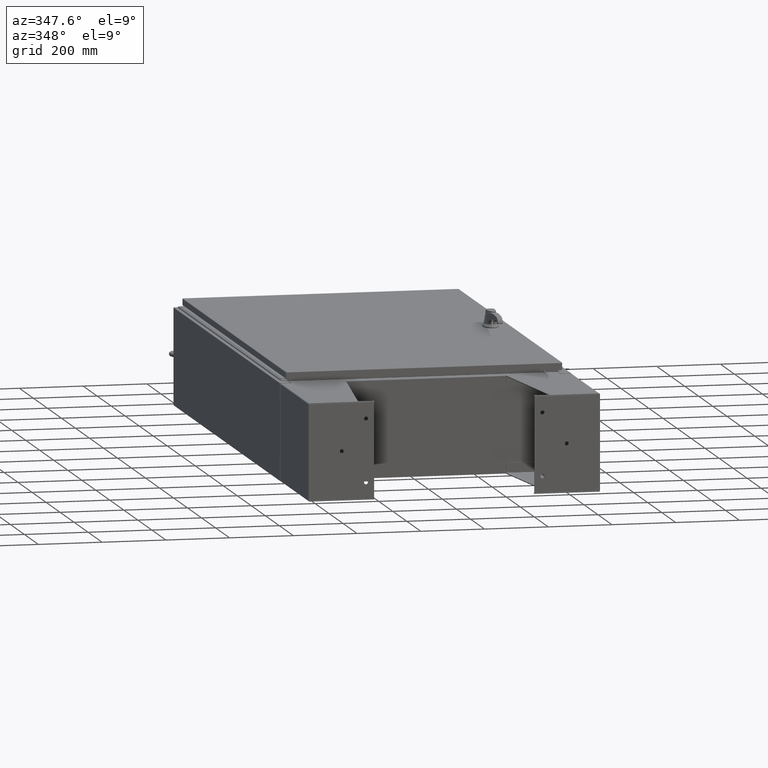
[diagram: clean part render]
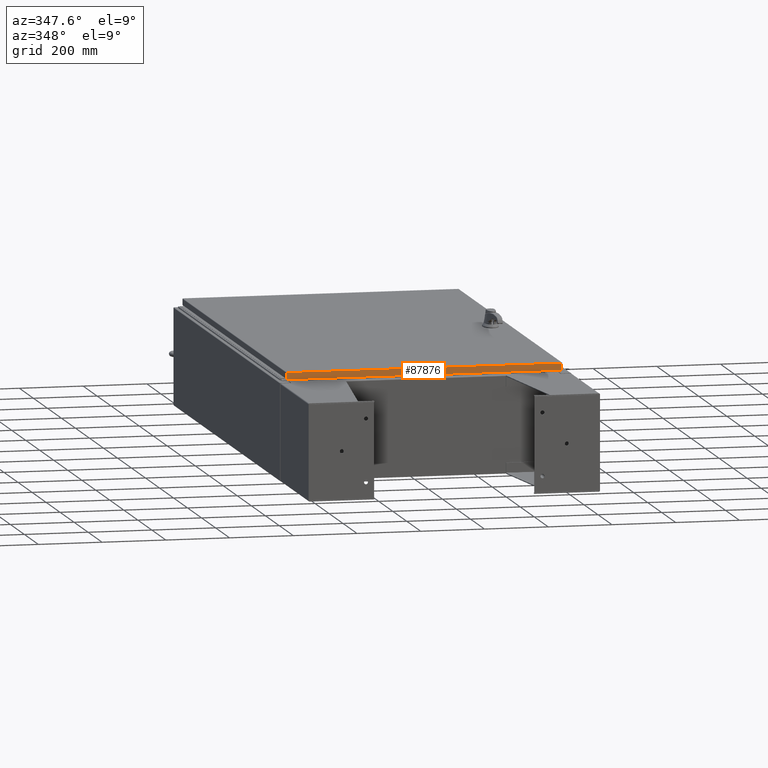
[diagram: same view with one face highlighted and labeled with its STEP entity id]
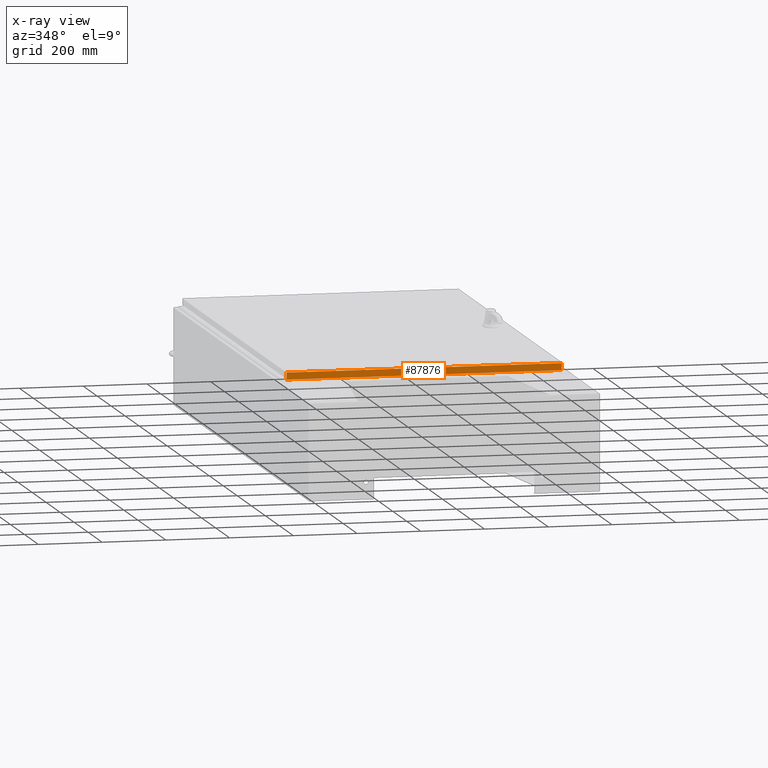
[diagram: x-ray of the same camera — body ghosted, the highlighted face saturated]
A machine part, auxiliary view. The second image highlights one B-rep face of the part: STEP entity #87876.
The next image is the same camera in x-ray: the body ghosted, the highlighted face saturated — about 0% of this face is hidden behind the body in this view.
In plain terms, the highlighted planar face has unit normal (-0, 1, -0).
Its self-contained STEP definition (entity closure, byte-faithful):
#3765 = CARTESIAN_POINT ( 'NONE',  ( -16.98915786437626700, -29.09400000000000100, -0.08769999999999550400 ) ) ;
#21028 = EDGE_CURVE ( 'NONE', #102440, #144870, #144895, .T. ) ;
#30007 = PLANE ( 'NONE',  #117125 ) ;
#30159 = CARTESIAN_POINT ( 'NONE',  ( 17.07800000000000300, -29.09400000000000100, -0.08769999999999550400 ) ) ;
#31790 = LINE ( 'NONE', #73816, #54768 ) ;
#33710 = EDGE_CURVE ( 'NONE', #102440, #87338, #83540, .T. ) ;
#35629 = LINE ( 'NONE', #95351, #92241 ) ;
#41343 = DIRECTION ( 'NONE',  ( -6.481495528880677800E-031, 1.000000000000000000, -5.064839849203732200E-015 ) ) ;
#54768 = VECTOR ( 'NONE', #108103, 39.37007874015748100 ) ;
#56981 = EDGE_CURVE ( 'NONE', #119733, #144870, #35629, .T. ) ;
#57029 = VECTOR ( 'NONE', #97934, 39.37007874015748100 ) ;
#60393 = ORIENTED_EDGE ( 'NONE', *, *, #145288, .F. ) ;
#65203 = DIRECTION ( 'NONE',  ( 0.0000000000000000000, -5.064839849203732200E-015, -1.000000000000000000 ) ) ;
#66505 = CARTESIAN_POINT ( 'NONE',  ( -16.98915786437626700, -29.09400000000000500, -0.9376999999999954300 ) ) ;
#69242 = ORIENTED_EDGE ( 'NONE', *, *, #56981, .F. ) ;
#73816 = CARTESIAN_POINT ( 'NONE',  ( 16.98915786437627100, -29.09400000000000100, -0.07469999999999962800 ) ) ;
#76605 = CARTESIAN_POINT ( 'NONE',  ( 16.98915786437627100, -29.09400000000000500, -0.9376999999999997600 ) ) ;
#83540 = LINE ( 'NONE', #30159, #57029 ) ;
#87338 = VERTEX_POINT ( 'NONE', #112837 ) ;
#87876 = ADVANCED_FACE ( 'NONE', ( #142935 ), #30007, .F. ) ;
#90629 = ORIENTED_EDGE ( 'NONE', *, *, #33710, .F. ) ;
#92241 = VECTOR ( 'NONE', #140344, 39.37007874015748100 ) ;
#95351 = CARTESIAN_POINT ( 'NONE',  ( 17.07800000000000300, -29.09400000000000500, -0.9376999999999997600 ) ) ;
#97779 = CARTESIAN_POINT ( 'NONE',  ( 1.885726309172544400E-029, -29.09400000000000100, 1.476172642287449700E-013 ) ) ;
#97934 = DIRECTION ( 'NONE',  ( 1.000000000000000000, 6.481495528880679500E-031, -3.349804276043092600E-045 ) ) ;
#99426 = CARTESIAN_POINT ( 'NONE',  ( -16.98915786437626700, -29.09400000000000100, 1.476172642287449700E-013 ) ) ;
#101548 = EDGE_LOOP ( 'NONE', ( #90629, #145491, #69242, #60393 ) ) ;
#102440 = VERTEX_POINT ( 'NONE', #3765 ) ;
#108103 = DIRECTION ( 'NONE',  ( -0.0000000000000000000, -5.064839849203732200E-015, -1.000000000000000000 ) ) ;
#112837 = CARTESIAN_POINT ( 'NONE',  ( 16.98915786437627100, -29.09400000000000100, -0.08769999999999550400 ) ) ;
#117125 = AXIS2_PLACEMENT_3D ( 'NONE', #97779, #41343, #120551 ) ;
#118426 = VECTOR ( 'NONE', #65203, 39.37007874015748100 ) ;
#119733 = VERTEX_POINT ( 'NONE', #76605 ) ;
#120551 = DIRECTION ( 'NONE',  ( 0.0000000000000000000, 5.064839849203732200E-015, 1.000000000000000000 ) ) ;
#140344 = DIRECTION ( 'NONE',  ( -1.000000000000000000, -8.758115402030106700E-047, 1.279703943630056600E-016 ) ) ;
#142935 = FACE_OUTER_BOUND ( 'NONE', #101548, .T. ) ;
#144870 = VERTEX_POINT ( 'NONE', #66505 ) ;
#144895 = LINE ( 'NONE', #99426, #118426 ) ;
#145288 = EDGE_CURVE ( 'NONE', #87338, #119733, #31790, .T. ) ;
#145491 = ORIENTED_EDGE ( 'NONE', *, *, #21028, .T. ) ;